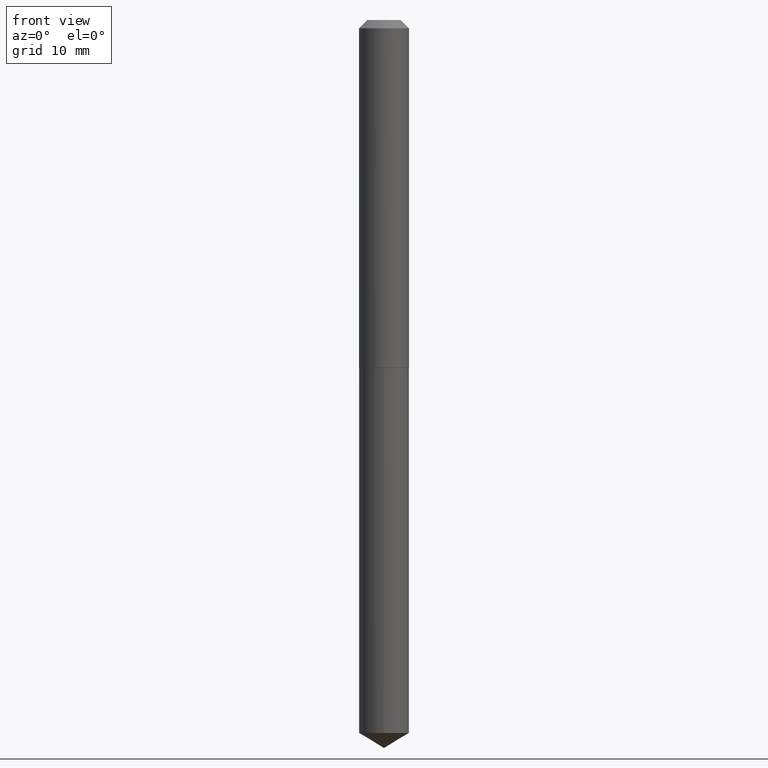
[diagram: clean part render]
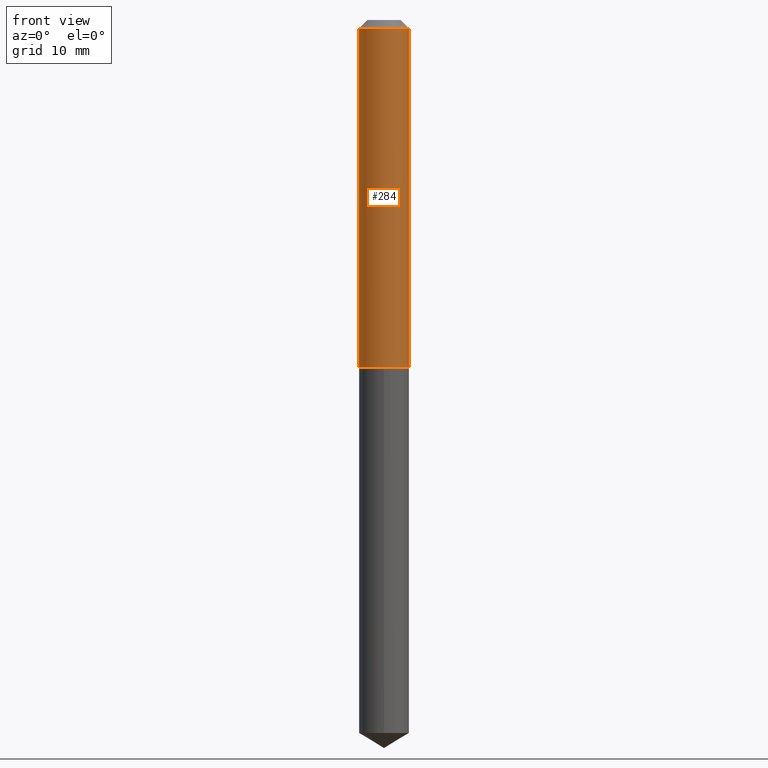
[diagram: same view with one face highlighted and labeled with its STEP entity id]
A machine part, front view. The second image highlights one B-rep face of the part: STEP entity #284.
In plain terms, the highlighted cylindrical surface (edge-blend (fillet) strip) has radius 2.4003 mm, axis along (-0, 0, 1).
Its self-contained STEP definition (entity closure, byte-faithful):
#7 = AXIS2_PLACEMENT_3D ( 'NONE', #58, #384, #270 ) ;
#14 = VECTOR ( 'NONE', #115, 39.37007874015748143 ) ;
#26 = EDGE_CURVE ( 'NONE', #369, #212, #123, .T. ) ;
#27 = VERTEX_POINT ( 'NONE', #226 ) ;
#58 = CARTESIAN_POINT ( 'NONE',  ( 0.000000000000000000, 0.000000000000000000, 0.000000000000000000 ) ) ;
#59 = DIRECTION ( 'NONE',  ( 1.000000000000000000, -6.982962677686266711E-15, 0.000000000000000000 ) ) ;
#66 = CYLINDRICAL_SURFACE ( 'NONE', #7, 0.09450000000000008393 ) ;
#73 = EDGE_CURVE ( 'NONE', #27, #212, #75, .T. ) ;
#75 = CIRCLE ( 'NONE', #184, 0.09449999999999998679 ) ;
#104 = ORIENTED_EDGE ( 'NONE', *, *, #298, .T. ) ;
#115 = DIRECTION ( 'NONE',  ( -2.445468806185136877E-29, 3.491481338843145188E-15, 1.000000000000000000 ) ) ;
#122 = CARTESIAN_POINT ( 'NONE',  ( 3.212123276924177386E-29, -4.586060738570472102E-15, -1.313500000000000112 ) ) ;
#123 = LINE ( 'NONE', #225, #260 ) ;
#131 = ORIENTED_EDGE ( 'NONE', *, *, #26, .T. ) ;
#146 = FACE_OUTER_BOUND ( 'NONE', #382, .T. ) ;
#148 = ORIENTED_EDGE ( 'NONE', *, *, #73, .F. ) ;
#156 = EDGE_CURVE ( 'NONE', #249, #27, #344, .T. ) ;
#170 = DIRECTION ( 'NONE',  ( -2.445468806185136597E-29, 3.491481338843145583E-15, 1.000000000000000000 ) ) ;
#178 = CIRCLE ( 'NONE', #279, 0.09450000000000013944 ) ;
#184 = AXIS2_PLACEMENT_3D ( 'NONE', #359, #315, #59 ) ;
#212 = VERTEX_POINT ( 'NONE', #363 ) ;
#225 = CARTESIAN_POINT ( 'NONE',  ( 0.09450000000000008393, -6.598899730413527051E-16, 4.607987053127163164E-30 ) ) ;
#226 = CARTESIAN_POINT ( 'NONE',  ( -0.09449999999999998679, -1.676121879911364540E-15, -0.03125000000000019429 ) ) ;
#228 = DIRECTION ( 'NONE',  ( 1.000000000000000000, -6.982962677686265922E-15, 0.000000000000000000 ) ) ;
#249 = VERTEX_POINT ( 'NONE', #323 ) ;
#260 = VECTOR ( 'NONE', #261, 39.37007874015748143 ) ;
#261 = DIRECTION ( 'NONE',  ( -2.445468806185136877E-29, 3.491481338843145188E-15, 1.000000000000000000 ) ) ;
#270 = DIRECTION ( 'NONE',  ( 1.000000000000000000, -6.982962677686265922E-15, 4.876176775795935793E-29 ) ) ;
#279 = AXIS2_PLACEMENT_3D ( 'NONE', #122, #170, #228 ) ;
#284 = ADVANCED_FACE ( 'NONE', ( #146 ), #66, .T. ) ;
#298 = EDGE_CURVE ( 'NONE', #249, #369, #178, .T. ) ;
#303 = CARTESIAN_POINT ( 'NONE',  ( 0.09450000000000013944, -5.245950711611824906E-15, -1.313500000000000112 ) ) ;
#315 = DIRECTION ( 'NONE',  ( -2.445468806185136597E-29, 3.491481338843145583E-15, 1.000000000000000000 ) ) ;
#316 = CARTESIAN_POINT ( 'NONE',  ( -0.09450000000000008393, 6.714628852932952720E-16, -4.648393660290889834E-30 ) ) ;
#323 = CARTESIAN_POINT ( 'NONE',  ( -0.09450000000000013944, -3.914597853277176436E-15, -1.313500000000000112 ) ) ;
#342 = ORIENTED_EDGE ( 'NONE', *, *, #156, .F. ) ;
#344 = LINE ( 'NONE', #316, #14 ) ;
#359 = CARTESIAN_POINT ( 'NONE',  ( 7.642090019328598283E-31, -1.091087918388489651E-16, -0.03125000000000019429 ) ) ;
#363 = CARTESIAN_POINT ( 'NONE',  ( 0.09449999999999998679, -7.689987648802011155E-16, -0.03125000000000019429 ) ) ;
#369 = VERTEX_POINT ( 'NONE', #303 ) ;
#382 = EDGE_LOOP ( 'NONE', ( #342, #104, #131, #148 ) ) ;
#384 = DIRECTION ( 'NONE',  ( -2.445468806185136597E-29, 3.491481338843145583E-15, 1.000000000000000000 ) ) ;